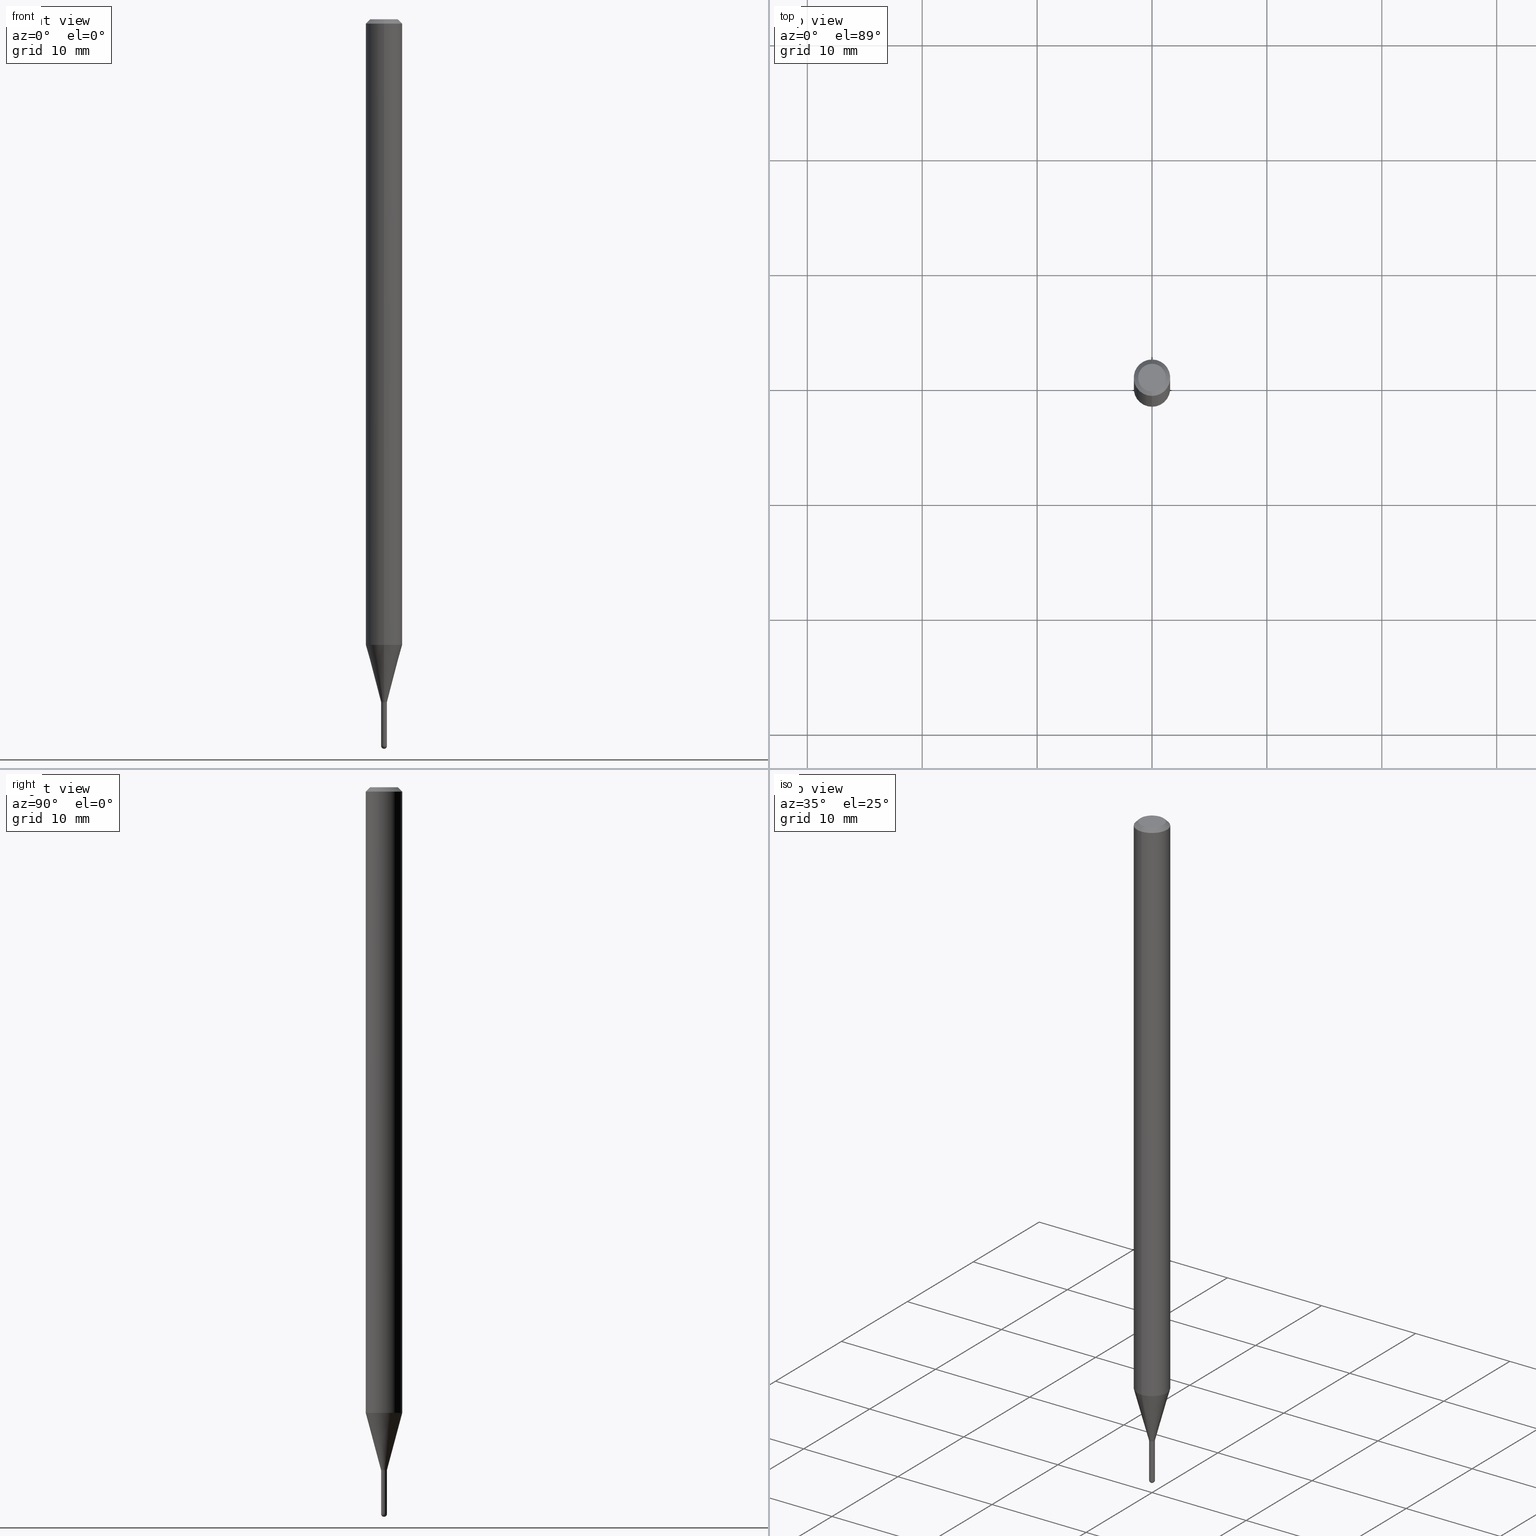
[diagram: canonical four-view strip — front | top / right | iso, engineering-drawing reading convention]
A machine part, canonical four-view strip (front | top / right | iso — engineering-drawing reading convention). The complete STEP part file that produces these views, byte-faithful:
ISO-10303-21;
HEADER;
FILE_DESCRIPTION (( 'STEP AP203' ),
    '1' );
FILE_NAME ('01529.STEP',
    '2024-03-07T19:36:58',
    ( '' ),
    ( '' ),
    'SwSTEP 2.0',
    'SolidWorks 2023',
    '' );
FILE_SCHEMA (( 'CONFIG_CONTROL_DESIGN' ));
ENDSEC;

DATA;
#1 = MANIFOLD_SOLID_BREP ( 'Body-Move/Copy2[1]', #83 ) ;
#2 = AXIS2_PLACEMENT_3D ( 'NONE', #194, #362, #115 ) ;
#3 = AXIS2_PLACEMENT_3D ( 'NONE', #209, #448, #123 ) ;
#4 = EDGE_CURVE ( 'NONE', #17, #47, #428, .T. ) ;
#5 = ORIENTED_EDGE ( 'NONE', *, *, #155, .F. ) ;
#6 = FACE_OUTER_BOUND ( 'NONE', #175, .T. ) ;
#7 = ORIENTED_EDGE ( 'NONE', *, *, #42, .F. ) ;
#8 = CARTESIAN_POINT ( 'NONE',  ( 0.000000000000000000, 0.000000000000000000, 0.000000000000000000 ) ) ;
#9 = ADVANCED_FACE ( 'NONE', ( #52 ), #171, .F. ) ;
#10 = VECTOR ( 'NONE', #511, 39.37007874015748143 ) ;
#11 = SECURITY_CLASSIFICATION ( '', '', #426 ) ;
#12 = DIRECTION ( 'NONE',  ( -2.445532582001462791E-29, 3.491390008244273026E-15, 1.000000000000000000 ) ) ;
#13 = CC_DESIGN_DATE_AND_TIME_ASSIGNMENT ( #384, #357, ( #394 ) ) ;
#14 = DIRECTION ( 'NONE',  ( -2.445532582001462791E-29, 3.491390008244272632E-15, 1.000000000000000000 ) ) ;
#15 = ORIENTED_EDGE ( 'NONE', *, *, #385, .T. ) ;
#16 = CIRCLE ( 'NONE', #54, 0.01000000000000000021 ) ;
#17 = VERTEX_POINT ( 'NONE', #460 ) ;
#18 = PERSON_AND_ORGANIZATION ( #111, #86 ) ;
#19 = DIRECTION ( 'NONE',  ( -2.445468806185136597E-29, 3.491481338843145583E-15, 1.000000000000000000 ) ) ;
#20 = CARTESIAN_POINT ( 'NONE',  ( 6.089217327400989947E-29, -8.693788533719431716E-15, -2.489999999999999769 ) ) ;
#21 = COORDINATED_UNIVERSAL_TIME_OFFSET ( 5, 0, .BEHIND. ) ;
#22 = CYLINDRICAL_SURFACE ( 'NONE', #506, 0.009999999999999923880 ) ;
#23 = ORIENTED_EDGE ( 'NONE', *, *, #422, .F. ) ;
#24 = CALENDAR_DATE ( 2024, 7, 3 ) ;
#25 = ADVANCED_FACE ( 'NONE', ( #303 ), #77, .T. ) ;
#26 = DIRECTION ( 'NONE',  ( -6.982962677686265922E-15, -1.000000000000000000, 0.000000000000000000 ) ) ;
#27 = CARTESIAN_POINT ( 'NONE',  ( 6.113244432318252078E-29, -8.729315670507435968E-15, -2.500000000000000000 ) ) ;
#28 = AXIS2_PLACEMENT_3D ( 'NONE', #8, #125, #163 ) ;
#29 = ORIENTED_EDGE ( 'NONE', *, *, #73, .T. ) ;
#30 = FACE_OUTER_BOUND ( 'NONE', #492, .T. ) ;
#31 = PRODUCT ( '01529', '01529', '', ( #345 ) ) ;
#32 = PERSON_AND_ORGANIZATION_ROLE ( 'design_owner' ) ;
#33 = EDGE_LOOP ( 'NONE', ( #154, #350 ) ) ;
#34 = CC_DESIGN_PERSON_AND_ORGANIZATION_ASSIGNMENT ( #269, #32, ( #31 ) ) ;
#35 = FACE_OUTER_BOUND ( 'NONE', #43, .T. ) ;
#36 = DIRECTION ( 'NONE',  ( 1.839019923739649619E-15, 0.2588190451025318972, 0.9659258262890653146 ) ) ;
#37 = ORIENTED_EDGE ( 'NONE', *, *, #308, .T. ) ;
#38 = DIRECTION ( 'NONE',  ( 6.982962677686265922E-15, 1.000000000000000000, 0.000000000000000000 ) ) ;
#39 = VERTEX_POINT ( 'NONE', #427 ) ;
#40 = CARTESIAN_POINT ( 'NONE',  ( 5.722397006473220130E-29, -8.170066332892960135E-15, -2.340000000000000302 ) ) ;
#41 = VERTEX_POINT ( 'NONE', #259 ) ;
#42 = EDGE_CURVE ( 'NONE', #364, #78, #262, .T. ) ;
#43 = EDGE_LOOP ( 'NONE', ( #112, #212, #344, #451 ) ) ;
#44 = CYLINDRICAL_SURFACE ( 'NONE', #28, 0.06250000000000000000 ) ;
#45 = CIRCLE ( 'NONE', #199, 0.01000000000000000021 ) ;
#46 = ORIENTED_EDGE ( 'NONE', *, *, #406, .F. ) ;
#47 = VERTEX_POINT ( 'NONE', #338 ) ;
#48 = EDGE_CURVE ( 'NONE', #283, #267, #331, .T. ) ;
#49 = VECTOR ( 'NONE', #189, 39.37007874015748854 ) ;
#50 = CC_DESIGN_SECURITY_CLASSIFICATION ( #11, ( #208 ) ) ;
#51 = CC_DESIGN_DATE_AND_TIME_ASSIGNMENT ( #146, #149, ( #11 ) ) ;
#52 = FACE_OUTER_BOUND ( 'NONE', #202, .T. ) ;
#53 = DIRECTION ( 'NONE',  ( 6.982962677686265922E-15, 1.000000000000000000, -3.491390008244273026E-15 ) ) ;
#54 = AXIS2_PLACEMENT_3D ( 'NONE', #140, #19, #307 ) ;
#55 = DIRECTION ( 'NONE',  ( 1.000000000000000000, -6.982962677686265922E-15, 4.883557194083112340E-29 ) ) ;
#56 = COORDINATED_UNIVERSAL_TIME_OFFSET ( 5, 0, .BEHIND. ) ;
#57 = ORIENTED_EDGE ( 'NONE', *, *, #308, .F. ) ;
#58 = EDGE_CURVE ( 'NONE', #107, #231, #286, .T. ) ;
#59 = ORIENTED_EDGE ( 'NONE', *, *, #169, .T. ) ;
#60 = DIRECTION ( 'NONE',  ( -1.807323732225378654E-15, -0.2588190451025251249, 0.9659258262890670910 ) ) ;
#61 = DIRECTION ( 'NONE',  ( -2.445468806185136597E-29, 3.491481338843145583E-15, 1.000000000000000000 ) ) ;
#62 = CALENDAR_DATE ( 2024, 7, 3 ) ;
#63 = VERTEX_POINT ( 'NONE', #490 ) ;
#64 = CARTESIAN_POINT ( 'NONE',  ( 0.000000000000000000, 0.000000000000000000, 0.000000000000000000 ) ) ;
#65 = AXIS2_PLACEMENT_3D ( 'NONE', #150, #280, #26 ) ;
#66 = LOCAL_TIME ( 14, 36, 58.00000000000000000, #227 ) ;
#67 = ORIENTED_EDGE ( 'NONE', *, *, #4, .F. ) ;
#68 = DIRECTION ( 'NONE',  ( -2.445532582001462791E-29, 3.491390008244272632E-15, 1.000000000000000000 ) ) ;
#69 = ORIENTED_EDGE ( 'NONE', *, *, #377, .T. ) ;
#70 = FACE_OUTER_BOUND ( 'NONE', #74, .T. ) ;
#71 = CIRCLE ( 'NONE', #445, 0.04749999999999999362 ) ;
#72 = EDGE_LOOP ( 'NONE', ( #336, #82 ) ) ;
#73 = EDGE_CURVE ( 'NONE', #283, #114, #486, .T. ) ;
#74 = EDGE_LOOP ( 'NONE', ( #23, #408, #380, #147 ) ) ;
#75 = DIRECTION ( 'NONE',  ( -2.445532582001462791E-29, 3.491390008244272632E-15, 1.000000000000000000 ) ) ;
#76 = APPLICATION_CONTEXT ( 'configuration controlled 3d designs of mechanical parts and assemblies' ) ;
#77 = CONICAL_SURFACE ( 'NONE', #196, 0.009999999999999649794, 0.2617993877991574569 ) ;
#78 = VERTEX_POINT ( 'NONE', #302 ) ;
#79 = AXIS2_PLACEMENT_3D ( 'NONE', #320, #153, #366 ) ;
#80 = EDGE_CURVE ( 'NONE', #246, #512, #96, .T. ) ;
#81 = UNCERTAINTY_MEASURE_WITH_UNIT (LENGTH_MEASURE( 1.000000000000000082E-05 ), #446, 'distance_accuracy_value', 'NONE');
#82 = ORIENTED_EDGE ( 'NONE', *, *, #4, .T. ) ;
#83 = CLOSED_SHELL ( 'NONE', ( #293, #375, #349, #254, #370 ) ) ;
#84 = EDGE_LOOP ( 'NONE', ( #181, #440, #217, #484 ) ) ;
#85 = VECTOR ( 'NONE', #222, 39.37007874015748143 ) ;
#86 = ORGANIZATION ( 'UNSPECIFIED', 'UNSPECIFIED', '' ) ;
#87 = SPHERICAL_SURFACE ( 'NONE', #109, 0.01000000000000008521 ) ;
#88 = DIRECTION ( 'NONE',  ( -2.445532582001462791E-29, 3.491390008244272632E-15, 1.000000000000000000 ) ) ;
#89 = ORIENTED_EDGE ( 'NONE', *, *, #135, .T. ) ;
#90 = EDGE_CURVE ( 'NONE', #166, #63, #447, .T. ) ;
#91 = DIRECTION ( 'NONE',  ( -2.445532582001462791E-29, 3.491390008244272632E-15, 1.000000000000000000 ) ) ;
#92 = DIRECTION ( 'NONE',  ( 6.982962677686265133E-15, 1.000000000000000000, 0.000000000000000000 ) ) ;
#93 = APPROVAL_STATUS ( 'not_yet_approved' ) ;
#94 = CARTESIAN_POINT ( 'NONE',  ( -0.01000000000000000021, -8.360873159730185055E-15, -2.340000000000000302 ) ) ;
#95 = CARTESIAN_POINT ( 'NONE',  ( 5.722546241883421547E-29, -8.169852619291597721E-15, -2.339999999999999858 ) ) ;
#96 = CIRCLE ( 'NONE', #137, 0.009499999999999998029 ) ;
#97 = DATE_AND_TIME ( #62, #337 ) ;
#98 = AXIS2_PLACEMENT_3D ( 'NONE', #274, #204, #278 ) ;
#99 = LINE ( 'NONE', #421, #482 ) ;
#100 = APPROVAL_PERSON_ORGANIZATION ( #143, #206, #192 ) ;
#101 = ADVANCED_FACE ( 'NONE', ( #136 ), #419, .F. ) ;
#102 = CARTESIAN_POINT ( 'NONE',  ( 4.440892098501153712E-16, 0.06249999999999995143, -0.01500000000000022669 ) ) ;
#103 = PERSON_AND_ORGANIZATION_ROLE ( 'design_supplier' ) ;
#104 = EDGE_CURVE ( 'NONE', #47, #114, #226, .T. ) ;
#105 = DIRECTION ( 'NONE',  ( -2.445532582001462791E-29, 3.491390008244272632E-15, 1.000000000000000000 ) ) ;
#106 = CARTESIAN_POINT ( 'NONE',  ( 5.722546241883422668E-29, -8.169852619291597721E-15, -2.340000000000000302 ) ) ;
#107 = VERTEX_POINT ( 'NONE', #219 ) ;
#108 = AXIS2_PLACEMENT_3D ( 'NONE', #376, #223, #53 ) ;
#109 = AXIS2_PLACEMENT_3D ( 'NONE', #462, #225, #378 ) ;
#110 = CARTESIAN_POINT ( 'NONE',  ( 7.105427357606474729E-17, 0.009999999999991479246, -2.340000000000000302 ) ) ;
#111 = PERSON ( 'UNSPECIFIED', 'UNSPECIFIED', 'UNSPECIFIED', ('UNSPECIFIED'), ('UNSPECIFIED'), ('UNSPECIFIED') ) ;
#112 = ORIENTED_EDGE ( 'NONE', *, *, #80, .T. ) ;
#113 = PLANE ( 'NONE',  #449 ) ;
#114 = VERTEX_POINT ( 'NONE', #102 ) ;
#115 = DIRECTION ( 'NONE',  ( -6.982962677686265922E-15, -1.000000000000000000, 0.000000000000000000 ) ) ;
#116 = DIRECTION ( 'NONE',  ( -6.982962677686265922E-15, -1.000000000000000000, 0.000000000000000000 ) ) ;
#117 = VERTEX_POINT ( 'NONE', #347 ) ;
#118 = CARTESIAN_POINT ( 'NONE',  ( 0.000000000000000000, 0.000000000000000000, 0.000000000000000000 ) ) ;
#119 = FACE_OUTER_BOUND ( 'NONE', #188, .T. ) ;
#120 = EDGE_CURVE ( 'NONE', #47, #17, #71, .T. ) ;
#121 = AXIS2_PLACEMENT_3D ( 'NONE', #40, #229, #322 ) ;
#122 = EDGE_LOOP ( 'NONE', ( #324, #59, #162, #430 ) ) ;
#123 = DIRECTION ( 'NONE',  ( -6.982962677686265133E-15, -1.000000000000000000, 0.000000000000000000 ) ) ;
#124 = ORIENTED_EDGE ( 'NONE', *, *, #48, .F. ) ;
#125 = DIRECTION ( 'NONE',  ( -2.445532582001462791E-29, 3.491390008244272632E-15, 1.000000000000000000 ) ) ;
#126 = CARTESIAN_POINT ( 'NONE',  ( 5.722546241883421547E-29, -8.169852619291597721E-15, -2.339999999999999858 ) ) ;
#127 = AXIS2_PLACEMENT_3D ( 'NONE', #363, #468, #311 ) ;
#128 = DIRECTION ( 'NONE',  ( -6.982962677686266711E-15, -1.000000000000000000, 3.491390008244273026E-15 ) ) ;
#129 = EDGE_CURVE ( 'NONE', #250, #231, #388, .T. ) ;
#130 = CONICAL_SURFACE ( 'NONE', #289, 0.06250000000000000000, 0.7853981633974483900 ) ;
#131 = DIRECTION ( 'NONE',  ( 1.000000000000000000, -6.982962677686235945E-15, 0.000000000000000000 ) ) ;
#132 = CARTESIAN_POINT ( 'NONE',  ( 4.440892098500625669E-16, 0.06250000000000000000, -2.182118755152670395E-16 ) ) ;
#133 = CARTESIAN_POINT ( 'NONE',  ( 2.167880946664454471E-46, -3.094997765293680207E-32, -8.864657795277567332E-18 ) ) ;
#134 = APPROVAL_STATUS ( 'not_yet_approved' ) ;
#135 = EDGE_CURVE ( 'NONE', #246, #231, #191, .T. ) ;
#136 = FACE_OUTER_BOUND ( 'NONE', #72, .T. ) ;
#137 = AXIS2_PLACEMENT_3D ( 'NONE', #95, #257, #416 ) ;
#138 = APPLICATION_PROTOCOL_DEFINITION ( 'international standard', 'config_control_design', 1994, #282 ) ;
#139 = VECTOR ( 'NONE', #236, 39.37007874015748143 ) ;
#140 = CARTESIAN_POINT ( 'NONE',  ( 5.722397006473220130E-29, -8.170066332892960135E-15, -2.340000000000000302 ) ) ;
#141 = DIRECTION ( 'NONE',  ( -6.982962677686265133E-15, -1.000000000000000000, 0.000000000000000000 ) ) ;
#142 = ORIENTED_EDGE ( 'NONE', *, *, #58, .F. ) ;
#143 = PERSON_AND_ORGANIZATION ( #111, #86 ) ;
#144 = FACE_OUTER_BOUND ( 'NONE', #33, .T. ) ;
#145 = CARTESIAN_POINT ( 'NONE',  ( -6.633814543796229745E-17, -0.009500000000008168577, -2.339999999999999858 ) ) ;
#146 = DATE_AND_TIME ( #503, #403 ) ;
#147 = ORIENTED_EDGE ( 'NONE', *, *, #201, .T. ) ;
#148 = CLOSED_SHELL ( 'NONE', ( #9, #327, #190, #477, #341, #25, #158, #245, #101, #297, #500, #415 ) ) ;
#149 = DATE_TIME_ROLE ( 'classification_date' ) ;
#150 = CARTESIAN_POINT ( 'NONE',  ( 5.722546241883422668E-29, -8.169852619291597721E-15, -2.340000000000000302 ) ) ;
#151 = EDGE_LOOP ( 'NONE', ( #332, #407, #369, #124 ) ) ;
#152 = CARTESIAN_POINT ( 'NONE',  ( -4.364351673553393088E-16, -0.06250000000000749401, -2.144067332602638931 ) ) ;
#153 = DIRECTION ( 'NONE',  ( -2.445532582001462791E-29, 3.491390008244272632E-15, 1.000000000000000000 ) ) ;
#154 = ORIENTED_EDGE ( 'NONE', *, *, #80, .F. ) ;
#155 = EDGE_CURVE ( 'NONE', #78, #63, #45, .T. ) ;
#156 = DIRECTION ( 'NONE',  ( 2.438088387897960049E-29, -3.491481338843145188E-15, -1.000000000000000000 ) ) ;
#157 = CARTESIAN_POINT ( 'NONE',  ( -6.633814543796229745E-17, -0.009500000000008168577, -2.339999999999999858 ) ) ;
#158 = ADVANCED_FACE ( 'NONE', ( #472 ), #200, .T. ) ;
#159 = VECTOR ( 'NONE', #36, 39.37007874015748143 ) ;
#160 = ORIENTED_EDGE ( 'NONE', *, *, #167, .T. ) ;
#161 = DIRECTION ( 'NONE',  ( -6.982962677686265922E-15, -1.000000000000000000, 0.000000000000000000 ) ) ;
#162 = ORIENTED_EDGE ( 'NONE', *, *, #435, .F. ) ;
#163 = DIRECTION ( 'NONE',  ( -6.982962677686265922E-15, -1.000000000000000000, 3.491390008244272632E-15 ) ) ;
#164 = EDGE_LOOP ( 'NONE', ( #328, #232, #251, #242, #474 ) ) ;
#165 = CC_DESIGN_APPROVAL ( #489, ( #11 ) ) ;
#166 = VERTEX_POINT ( 'NONE', #27 ) ;
#167 = EDGE_CURVE ( 'NONE', #512, #246, #353, .T. ) ;
#168 = DIRECTION ( 'NONE',  ( -2.445468806185136597E-29, 3.491481338843145583E-15, 1.000000000000000000 ) ) ;
#169 = EDGE_CURVE ( 'NONE', #117, #283, #481, .T. ) ;
#170 = CARTESIAN_POINT ( 'NONE',  ( -4.364351673553916201E-16, -0.06250000000000000000, 2.182118755152670395E-16 ) ) ;
#171 = CYLINDRICAL_SURFACE ( 'NONE', #470, 0.009999999999999923880 ) ;
#172 = AXIS2_PLACEMENT_3D ( 'NONE', #118, #368, #510 ) ;
#173 = CONICAL_SURFACE ( 'NONE', #488, 0.009499999999999998029, 0.7853981633980202659 ) ;
#174 = APPROVAL ( #493, 'UNSPECIFIED' ) ;
#175 = EDGE_LOOP ( 'NONE', ( #476, #160, #89, #142 ) ) ;
#176 = EDGE_CURVE ( 'NONE', #41, #444, #230, .T. ) ;
#177 =( NAMED_UNIT ( * ) SI_UNIT ( $, .STERADIAN. ) SOLID_ANGLE_UNIT ( ) );
#178 = CARTESIAN_POINT ( 'NONE',  ( 5.243386519884720525E-29, -7.485775262051803543E-15, -2.144067332602638931 ) ) ;
#179 = APPROVAL_DATE_TIME ( #389, #489 ) ;
#180 = ORIENTED_EDGE ( 'NONE', *, *, #452, .T. ) ;
#181 = ORIENTED_EDGE ( 'NONE', *, *, #377, .F. ) ;
#182 = PERSON_AND_ORGANIZATION_ROLE ( 'creator' ) ;
#183 = AXIS2_PLACEMENT_3D ( 'NONE', #290, #61, #437 ) ;
#184 = FACE_OUTER_BOUND ( 'NONE', #164, .T. ) ;
#185 = CC_DESIGN_APPROVAL ( #206, ( #208 ) ) ;
#186 = DIRECTION ( 'NONE',  ( -6.982962677686265922E-15, -1.000000000000000000, 3.483106191921935554E-15 ) ) ;
#187 = CARTESIAN_POINT ( 'NONE',  ( 0.000000000000000000, 0.000000000000000000, 0.000000000000000000 ) ) ;
#188 = EDGE_LOOP ( 'NONE', ( #67, #321, #438, #273 ) ) ;
#189 = DIRECTION ( 'NONE',  ( 5.024295867790934632E-15, 0.7071067811869542474, 0.7071067811861405650 ) ) ;
#190 = ADVANCED_FACE ( 'NONE', ( #119 ), #296, .T. ) ;
#191 = LINE ( 'NONE', #157, #213 ) ;
#192 = APPROVAL_ROLE ( '' ) ;
#193 = EDGE_LOOP ( 'NONE', ( #412, #361, #413, #508, #374 ) ) ;
#194 = CARTESIAN_POINT ( 'NONE',  ( 5.722546241883421547E-29, -8.169852619291597721E-15, -2.339999999999999858 ) ) ;
#195 = DIRECTION ( 'NONE',  ( -2.445468806185136597E-29, 3.491481338843145583E-15, 1.000000000000000000 ) ) ;
#196 = AXIS2_PLACEMENT_3D ( 'NONE', #106, #271, #457 ) ;
#197 = ORIENTED_EDGE ( 'NONE', *, *, #48, .T. ) ;
#198 = CARTESIAN_POINT ( 'NONE',  ( -4.364351673553912750E-16, -0.06250000000000005551, -0.01499999999999979128 ) ) ;
#199 = AXIS2_PLACEMENT_3D ( 'NONE', #281, #195, #397 ) ;
#200 = CYLINDRICAL_SURFACE ( 'NONE', #410, 0.06250000000000000000 ) ;
#201 = EDGE_CURVE ( 'NONE', #114, #358, #487, .T. ) ;
#202 = EDGE_LOOP ( 'NONE', ( #210, #69, #498, #417 ) ) ;
#203 = DIRECTION ( 'NONE',  ( -6.982962677686265922E-15, -1.000000000000000000, 3.491390008244273026E-15 ) ) ;
#204 = DIRECTION ( 'NONE',  ( 2.445532582001462791E-29, -3.491390008244272632E-15, -1.000000000000000000 ) ) ;
#205 = AXIS2_PLACEMENT_3D ( 'NONE', #425, #340, #141 ) ;
#206 = APPROVAL ( #134, 'UNSPECIFIED' ) ;
#207 = CIRCLE ( 'NONE', #121, 0.01000000000000000021 ) ;
#208 = PRODUCT_DEFINITION_FORMATION_WITH_SPECIFIED_SOURCE ( 'ANY', '', #31, .NOT_KNOWN. ) ;
#209 = CARTESIAN_POINT ( 'NONE',  ( 5.721323475592422370E-29, -8.168106924287477831E-15, -2.339500000000000135 ) ) ;
#210 = ORIENTED_EDGE ( 'NONE', *, *, #253, .F. ) ;
#211 = FACE_OUTER_BOUND ( 'NONE', #504, .T. ) ;
#212 = ORIENTED_EDGE ( 'NONE', *, *, #272, .T. ) ;
#213 = VECTOR ( 'NONE', #241, 39.37007874015748854 ) ;
#214 = EDGE_CURVE ( 'NONE', #63, #41, #220, .T. ) ;
#215 = DIRECTION ( 'NONE',  ( -2.445532582001462791E-29, 3.491390008244272632E-15, 1.000000000000000000 ) ) ;
#216 = LINE ( 'NONE', #170, #255 ) ;
#217 = ORIENTED_EDGE ( 'NONE', *, *, #129, .T. ) ;
#218 = CARTESIAN_POINT ( 'NONE',  ( -4.287811248607203282E-16, -0.06250000000000005551, -0.01499999999999979128 ) ) ;
#219 = CARTESIAN_POINT ( 'NONE',  ( 7.105427357606838345E-17, 0.009999999999991994459, -2.339500000000000135 ) ) ;
#220 = CIRCLE ( 'NONE', #183, 0.01000000000000000021 ) ;
#221 = APPROVAL_DATE_TIME ( #97, #174 ) ;
#222 = DIRECTION ( 'NONE',  ( -2.445468806185136877E-29, 3.491481338843145188E-15, 1.000000000000000000 ) ) ;
#223 = DIRECTION ( 'NONE',  ( 2.445532582001461950E-29, -3.491390008244273026E-15, -1.000000000000000000 ) ) ;
#224 = CALENDAR_DATE ( 2024, 7, 3 ) ;
#225 = DIRECTION ( 'NONE',  ( -1.000000000000000000, 6.982962677686265922E-15, -4.883557194083113462E-29 ) ) ;
#226 = LINE ( 'NONE', #494, #497 ) ;
#227 = COORDINATED_UNIVERSAL_TIME_OFFSET ( 5, 0, .BEHIND. ) ;
#228 = AXIS2_PLACEMENT_3D ( 'NONE', #133, #14, #299 ) ;
#229 = DIRECTION ( 'NONE',  ( -2.445468806185136597E-29, 3.491481338843145583E-15, 1.000000000000000000 ) ) ;
#230 = LINE ( 'NONE', #323, #139 ) ;
#231 = VERTEX_POINT ( 'NONE', #479 ) ;
#232 = ORIENTED_EDGE ( 'NONE', *, *, #406, .T. ) ;
#233 = EDGE_CURVE ( 'NONE', #358, #114, #392, .T. ) ;
#234 = VECTOR ( 'NONE', #60, 39.37007874015748854 ) ;
#235 = APPROVAL_PERSON_ORGANIZATION ( #18, #174, #360 ) ;
#236 = DIRECTION ( 'NONE',  ( -2.445468806185136877E-29, 3.491481338843145188E-15, 1.000000000000000000 ) ) ;
#237 = DIRECTION ( 'NONE',  ( 1.000000000000000000, 0.000000000000000000, 0.000000000000000000 ) ) ;
#238 = EDGE_LOOP ( 'NONE', ( #329, #180 ) ) ;
#239 = ADVANCED_BREP_SHAPE_REPRESENTATION ( '01529', ( #1, #351, #326 ), #256 ) ;
#240 = PLANE ( 'NONE',  #414 ) ;
#241 = DIRECTION ( 'NONE',  ( -4.937700262167370586E-15, -0.7071067811869493624, 0.7071067811861454500 ) ) ;
#242 = ORIENTED_EDGE ( 'NONE', *, *, #443, .T. ) ;
#243 = DIRECTION ( 'NONE',  ( -1.000000000000000000, 6.982962677686265922E-15, -4.876176775795935793E-29 ) ) ;
#244 = SPHERICAL_SURFACE ( 'NONE', #393, 0.01000000000000008521 ) ;
#245 = ADVANCED_FACE ( 'NONE', ( #70 ), #130, .T. ) ;
#246 = VERTEX_POINT ( 'NONE', #145 ) ;
#247 = LINE ( 'NONE', #288, #234 ) ;
#248 = AXIS2_PLACEMENT_3D ( 'NONE', #263, #343, #491 ) ;
#249 = CARTESIAN_POINT ( 'NONE',  ( 6.088362161111811119E-29, -8.695013180518578499E-15, -2.489999999999999769 ) ) ;
#250 = VERTEX_POINT ( 'NONE', #442 ) ;
#251 = ORIENTED_EDGE ( 'NONE', *, *, #42, .T. ) ;
#252 = CIRCLE ( 'NONE', #382, 0.01000000000000000021 ) ;
#253 = EDGE_CURVE ( 'NONE', #117, #250, #402, .T. ) ;
#254 = ADVANCED_FACE ( 'NONE', ( #30 ), #244, .T. ) ;
#255 = VECTOR ( 'NONE', #266, 39.37007874015748143 ) ;
#256 =( GEOMETRIC_REPRESENTATION_CONTEXT ( 3 ) GLOBAL_UNCERTAINTY_ASSIGNED_CONTEXT ( ( #81 ) ) GLOBAL_UNIT_ASSIGNED_CONTEXT ( ( #446, #318, #177 ) ) REPRESENTATION_CONTEXT ( 'NONE', 'WORKASPACE' ) );
#257 = DIRECTION ( 'NONE',  ( -2.445532582001462791E-29, 3.491390008244272632E-15, 1.000000000000000000 ) ) ;
#258 = DIRECTION ( 'NONE',  ( -6.982962677686265922E-15, -1.000000000000000000, 3.491390008244272237E-15 ) ) ;
#259 = CARTESIAN_POINT ( 'NONE',  ( -0.01000000000000000021, -8.360873159730185055E-15, -2.489999999999999769 ) ) ;
#260 = AXIS2_PLACEMENT_3D ( 'NONE', #20, #168, #423 ) ;
#261 = PERSON_AND_ORGANIZATION ( #111, #86 ) ;
#262 = CIRCLE ( 'NONE', #260, 0.01000000000000000021 ) ;
#263 = CARTESIAN_POINT ( 'NONE',  ( 5.243386519884720525E-29, -7.485775262051803543E-15, -2.144067332602638931 ) ) ;
#264 = CARTESIAN_POINT ( 'NONE',  ( 6.088362161111811119E-29, -8.695013180518578499E-15, -2.489999999999999769 ) ) ;
#265 = CIRCLE ( 'NONE', #248, 0.06250000000000000000 ) ;
#266 = DIRECTION ( 'NONE',  ( -2.445532582001462791E-29, 3.491390008244273026E-15, 1.000000000000000000 ) ) ;
#267 = VERTEX_POINT ( 'NONE', #152 ) ;
#268 = CARTESIAN_POINT ( 'NONE',  ( 2.167880946664454471E-46, -3.094997765293680207E-32, -8.864657795277567332E-18 ) ) ;
#269 = PERSON_AND_ORGANIZATION ( #111, #86 ) ;
#270 = LINE ( 'NONE', #459, #85 ) ;
#271 = DIRECTION ( 'NONE',  ( -2.445532582001462791E-29, 3.491390008244272632E-15, 1.000000000000000000 ) ) ;
#272 = EDGE_CURVE ( 'NONE', #512, #107, #431, .T. ) ;
#273 = ORIENTED_EDGE ( 'NONE', *, *, #104, .F. ) ;
#274 = CARTESIAN_POINT ( 'NONE',  ( 3.668298873002196219E-31, -5.237085012366411782E-17, -0.01500000000000000812 ) ) ;
#275 = DIRECTION ( 'NONE',  ( 0.000000000000000000, 0.000000000000000000, 1.000000000000000000 ) ) ;
#276 = CONICAL_SURFACE ( 'NONE', #65, 0.009999999999999649794, 0.2617993877991574569 ) ;
#277 = DIRECTION ( 'NONE',  ( -1.000000000000000000, 7.105427357601001070E-15, -4.926315508542082329E-29 ) ) ;
#278 = DIRECTION ( 'NONE',  ( 6.982962677686265922E-15, 1.000000000000000000, -3.483106191921935554E-15 ) ) ;
#279 = CC_DESIGN_PERSON_AND_ORGANIZATION_ASSIGNMENT ( #312, #386, ( #11 ) ) ;
#280 = DIRECTION ( 'NONE',  ( -2.445532582001462791E-29, 3.491390008244272632E-15, 1.000000000000000000 ) ) ;
#281 = CARTESIAN_POINT ( 'NONE',  ( 6.089217327400989947E-29, -8.693788533719431716E-15, -2.489999999999999769 ) ) ;
#282 = APPLICATION_CONTEXT ( 'configuration controlled 3d designs of mechanical parts and assemblies' ) ;
#283 = VERTEX_POINT ( 'NONE', #436 ) ;
#284 = CYLINDRICAL_SURFACE ( 'NONE', #172, 0.01000000000000000021 ) ;
#285 = CARTESIAN_POINT ( 'NONE',  ( 3.668298873002196219E-31, -5.237085012366411782E-17, -0.01500000000000000812 ) ) ;
#286 = CIRCLE ( 'NONE', #205, 0.01000000000000019623 ) ;
#287 = VECTOR ( 'NONE', #12, 39.37007874015748143 ) ;
#288 = CARTESIAN_POINT ( 'NONE',  ( -6.982962677680298731E-17, -0.01000000000000782034, -2.340000000000000302 ) ) ;
#289 = AXIS2_PLACEMENT_3D ( 'NONE', #405, #391, #356 ) ;
#290 = CARTESIAN_POINT ( 'NONE',  ( 6.089217327400989947E-29, -8.693788533719431716E-15, -2.489999999999999769 ) ) ;
#291 = EDGE_LOOP ( 'NONE', ( #319, #197, #15, #309 ) ) ;
#292 = CARTESIAN_POINT ( 'NONE',  ( 6.927791673666766302E-17, 0.009499999999991829217, -2.339999999999999858 ) ) ;
#293 = ADVANCED_FACE ( 'NONE', ( #313 ), #478, .T. ) ;
#294 = EDGE_CURVE ( 'NONE', #250, #267, #247, .T. ) ;
#295 = ORIENTED_EDGE ( 'NONE', *, *, #385, .F. ) ;
#296 = CONICAL_SURFACE ( 'NONE', #98, 0.06250000000000000000, 0.7853981633974483900 ) ;
#297 = ADVANCED_FACE ( 'NONE', ( #144 ), #240, .F. ) ;
#298 = PRODUCT_RELATED_PRODUCT_CATEGORY ( 'detail', '', ( #31 ) ) ;
#299 = DIRECTION ( 'NONE',  ( -6.982962677686266711E-15, -1.000000000000000000, 3.491390008244273026E-15 ) ) ;
#300 = LOCAL_TIME ( 14, 36, 58.00000000000000000, #56 ) ;
#301 = FACE_OUTER_BOUND ( 'NONE', #84, .T. ) ;
#302 = CARTESIAN_POINT ( 'NONE',  ( 0.01000000000000000021, -8.501757060083058435E-15, -2.489999999999999769 ) ) ;
#303 = FACE_OUTER_BOUND ( 'NONE', #151, .T. ) ;
#304 = APPROVAL_DATE_TIME ( #464, #206 ) ;
#305 = ORIENTED_EDGE ( 'NONE', *, *, #90, .T. ) ;
#306 = AXIS2_PLACEMENT_3D ( 'NONE', #465, #105, #409 ) ;
#307 = DIRECTION ( 'NONE',  ( 1.000000000000000000, -6.982962677686235945E-15, 0.000000000000000000 ) ) ;
#308 = EDGE_CURVE ( 'NONE', #166, #364, #485, .T. ) ;
#309 = ORIENTED_EDGE ( 'NONE', *, *, #201, .F. ) ;
#310 = COORDINATED_UNIVERSAL_TIME_OFFSET ( 5, 0, .BEHIND. ) ;
#311 = DIRECTION ( 'NONE',  ( -6.982962677686265922E-15, -1.000000000000000000, 0.000000000000000000 ) ) ;
#312 = PERSON_AND_ORGANIZATION ( #111, #86 ) ;
#313 = FACE_OUTER_BOUND ( 'NONE', #193, .T. ) ;
#314 = CARTESIAN_POINT ( 'NONE',  ( -6.982962677686212723E-17, -0.009999999999999923880, 3.491390008244245761E-17 ) ) ;
#315 = PERSON_AND_ORGANIZATION ( #111, #86 ) ;
#316 = CONICAL_SURFACE ( 'NONE', #2, 0.009499999999999998029, 0.7853981633980202659 ) ;
#317 = DIRECTION ( 'NONE',  ( 1.000000000000000000, -6.982962677686265922E-15, 4.876176775795935793E-29 ) ) ;
#318 =( NAMED_UNIT ( * ) PLANE_ANGLE_UNIT ( ) SI_UNIT ( $, .RADIAN. ) );
#319 = ORIENTED_EDGE ( 'NONE', *, *, #73, .F. ) ;
#320 = CARTESIAN_POINT ( 'NONE',  ( 3.668298873002196219E-31, -5.237085012366411782E-17, -0.01500000000000000812 ) ) ;
#321 = ORIENTED_EDGE ( 'NONE', *, *, #422, .T. ) ;
#322 = DIRECTION ( 'NONE',  ( 1.000000000000000000, -6.982962677686235945E-15, 0.000000000000000000 ) ) ;
#323 = CARTESIAN_POINT ( 'NONE',  ( -0.01000000000000000021, 7.105427357601002007E-17, -4.918935090254906272E-31 ) ) ;
#324 = ORIENTED_EDGE ( 'NONE', *, *, #469, .T. ) ;
#325 = AXIS2_PLACEMENT_3D ( 'NONE', #64, #390, #317 ) ;
#326 = AXIS2_PLACEMENT_3D ( 'NONE', #187, #275, #237 ) ;
#327 = ADVANCED_FACE ( 'NONE', ( #35 ), #316, .T. ) ;
#328 = ORIENTED_EDGE ( 'NONE', *, *, #176, .F. ) ;
#329 = ORIENTED_EDGE ( 'NONE', *, *, #334, .T. ) ;
#330 = LENGTH_MEASURE_WITH_UNIT ( LENGTH_MEASURE( 0.02539999999999999897 ), #333 );
#331 = CIRCLE ( 'NONE', #371, 0.06250000000000000000 ) ;
#332 = ORIENTED_EDGE ( 'NONE', *, *, #169, .F. ) ;
#333 =( LENGTH_UNIT ( ) NAMED_UNIT ( * ) SI_UNIT ( $, .METRE. ) );
#334 = EDGE_CURVE ( 'NONE', #39, #444, #207, .T. ) ;
#335 = VECTOR ( 'NONE', #495, 39.37007874015748143 ) ;
#336 = ORIENTED_EDGE ( 'NONE', *, *, #120, .T. ) ;
#337 = LOCAL_TIME ( 14, 36, 58.00000000000000000, #429 ) ;
#338 = CARTESIAN_POINT ( 'NONE',  ( 3.840629472727447874E-16, 0.04749999999999999362, -1.747056831868805136E-16 ) ) ;
#339 = DIRECTION ( 'NONE',  ( -2.445468806185136597E-29, 3.491481338843145583E-15, 1.000000000000000000 ) ) ;
#340 = DIRECTION ( 'NONE',  ( -2.445532582001462791E-29, 3.491390008244272632E-15, 1.000000000000000000 ) ) ;
#341 = ADVANCED_FACE ( 'NONE', ( #505 ), #276, .T. ) ;
#342 = CIRCLE ( 'NONE', #3, 0.01000000000000019623 ) ;
#343 = DIRECTION ( 'NONE',  ( -2.445532582001462791E-29, 3.491390008244272632E-15, 1.000000000000000000 ) ) ;
#344 = ORIENTED_EDGE ( 'NONE', *, *, #507, .F. ) ;
#345 = MECHANICAL_CONTEXT ( 'NONE', #282, 'mechanical' ) ;
#346 = DIRECTION ( 'NONE',  ( -2.445532582001462791E-29, 3.491390008244273026E-15, 1.000000000000000000 ) ) ;
#347 = CARTESIAN_POINT ( 'NONE',  ( 2.575717417130899915E-16, 0.009999999999991479246, -2.340000000000000302 ) ) ;
#348 = APPROVAL_ROLE ( '' ) ;
#349 = ADVANCED_FACE ( 'NONE', ( #475 ), #113, .F. ) ;
#350 = ORIENTED_EDGE ( 'NONE', *, *, #167, .F. ) ;
#351 = MANIFOLD_SOLID_BREP ( 'Body-Move/Copy2[2]', #148 ) ;
#352 = DESIGN_CONTEXT ( 'detailed design', #76, 'design' ) ;
#353 = CIRCLE ( 'NONE', #473, 0.009499999999999998029 ) ;
#354 = SHAPE_DEFINITION_REPRESENTATION ( #398, #239 ) ;
#355 = FACE_OUTER_BOUND ( 'NONE', #450, .T. ) ;
#356 = DIRECTION ( 'NONE',  ( 6.982962677686265922E-15, 1.000000000000000000, -3.483106191921935554E-15 ) ) ;
#357 = DATE_TIME_ROLE ( 'creation_date' ) ;
#358 = VERTEX_POINT ( 'NONE', #198 ) ;
#359 = DIRECTION ( 'NONE',  ( -6.982962677686265922E-15, -1.000000000000000000, 3.491390008244272632E-15 ) ) ;
#360 = APPROVAL_ROLE ( '' ) ;
#361 = ORIENTED_EDGE ( 'NONE', *, *, #176, .T. ) ;
#362 = DIRECTION ( 'NONE',  ( -2.445532582001462791E-29, 3.491390008244272632E-15, 1.000000000000000000 ) ) ;
#363 = CARTESIAN_POINT ( 'NONE',  ( 5.722546241883422668E-29, -8.169852619291597721E-15, -2.340000000000000302 ) ) ;
#364 = VERTEX_POINT ( 'NONE', #480 ) ;
#365 = CIRCLE ( 'NONE', #306, 0.009999999999999649794 ) ;
#366 = DIRECTION ( 'NONE',  ( -6.982962677686265922E-15, -1.000000000000000000, 3.483106191921935554E-15 ) ) ;
#367 = ORIENTED_EDGE ( 'NONE', *, *, #214, .F. ) ;
#368 = DIRECTION ( 'NONE',  ( -2.445468806185136597E-29, 3.491481338843145583E-15, 1.000000000000000000 ) ) ;
#369 = ORIENTED_EDGE ( 'NONE', *, *, #294, .T. ) ;
#370 = ADVANCED_FACE ( 'NONE', ( #184 ), #284, .T. ) ;
#371 = AXIS2_PLACEMENT_3D ( 'NONE', #178, #215, #463 ) ;
#372 = DIMENSIONAL_EXPONENTS ( 1.000000000000000000, 0.000000000000000000, 0.000000000000000000, 0.000000000000000000, 0.000000000000000000, 0.000000000000000000, 0.000000000000000000 ) ;
#373 = CC_DESIGN_PERSON_AND_ORGANIZATION_ASSIGNMENT ( #461, #103, ( #208 ) ) ;
#374 = ORIENTED_EDGE ( 'NONE', *, *, #155, .T. ) ;
#375 = ADVANCED_FACE ( 'NONE', ( #355 ), #87, .T. ) ;
#376 = CARTESIAN_POINT ( 'NONE',  ( 3.316907271900976096E-16, 0.04749999999999999362, -1.702733542892417146E-16 ) ) ;
#377 = EDGE_CURVE ( 'NONE', #117, #107, #99, .T. ) ;
#378 = DIRECTION ( 'NONE',  ( 6.982962677686265922E-15, 1.000000000000000000, 0.000000000000000000 ) ) ;
#379 = AXIS2_PLACEMENT_3D ( 'NONE', #264, #55, #92 ) ;
#380 = ORIENTED_EDGE ( 'NONE', *, *, #104, .T. ) ;
#381 = DIRECTION ( 'NONE',  ( -2.445532582001462791E-29, 3.491390008244272632E-15, 1.000000000000000000 ) ) ;
#382 = AXIS2_PLACEMENT_3D ( 'NONE', #387, #339, #131 ) ;
#383 = LOCAL_TIME ( 14, 36, 58.00000000000000000, #310 ) ;
#384 = DATE_AND_TIME ( #224, #300 ) ;
#385 = EDGE_CURVE ( 'NONE', #267, #358, #216, .T. ) ;
#386 = PERSON_AND_ORGANIZATION_ROLE ( 'classification_officer' ) ;
#387 = CARTESIAN_POINT ( 'NONE',  ( 6.089217327400989947E-29, -8.693788533719431716E-15, -2.489999999999999769 ) ) ;
#388 = LINE ( 'NONE', #314, #10 ) ;
#389 = DATE_AND_TIME ( #467, #383 ) ;
#390 = DIRECTION ( 'NONE',  ( -2.445468806185136597E-29, 3.491481338843145583E-15, 1.000000000000000000 ) ) ;
#391 = DIRECTION ( 'NONE',  ( 2.445532582001462791E-29, -3.491390008244272632E-15, -1.000000000000000000 ) ) ;
#392 = CIRCLE ( 'NONE', #453, 0.06250000000000000000 ) ;
#393 = AXIS2_PLACEMENT_3D ( 'NONE', #249, #400, #38 ) ;
#394 = PRODUCT_DEFINITION ( 'UNKNOWN', '', #208, #352 ) ;
#395 = APPROVAL_PERSON_ORGANIZATION ( #315, #489, #348 ) ;
#396 = CARTESIAN_POINT ( 'NONE',  ( 5.722546241883422668E-29, -8.169852619291597721E-15, -2.340000000000000302 ) ) ;
#397 = DIRECTION ( 'NONE',  ( 1.000000000000000000, -6.982962677686235945E-15, 0.000000000000000000 ) ) ;
#398 = PRODUCT_DEFINITION_SHAPE ( 'NONE', 'NONE',  #394 ) ;
#399 = CARTESIAN_POINT ( 'NONE',  ( 5.722546241883421547E-29, -8.169852619291597721E-15, -2.339999999999999858 ) ) ;
#400 = DIRECTION ( 'NONE',  ( -1.000000000000000000, 6.982962677686265922E-15, -4.883557194083113462E-29 ) ) ;
#401 = ORIENTED_EDGE ( 'NONE', *, *, #90, .F. ) ;
#402 = CIRCLE ( 'NONE', #127, 0.009999999999999649794 ) ;
#403 = LOCAL_TIME ( 14, 36, 58.00000000000000000, #21 ) ;
#404 = DIRECTION ( 'NONE',  ( -7.105427357601000281E-15, -1.000000000000000000, 0.000000000000000000 ) ) ;
#405 = CARTESIAN_POINT ( 'NONE',  ( 3.668298873002196219E-31, -5.237085012366411782E-17, -0.01500000000000000812 ) ) ;
#406 = EDGE_CURVE ( 'NONE', #41, #364, #252, .T. ) ;
#407 = ORIENTED_EDGE ( 'NONE', *, *, #253, .T. ) ;
#408 = ORIENTED_EDGE ( 'NONE', *, *, #120, .F. ) ;
#409 = DIRECTION ( 'NONE',  ( -6.982962677686265922E-15, -1.000000000000000000, 0.000000000000000000 ) ) ;
#410 = AXIS2_PLACEMENT_3D ( 'NONE', #432, #509, #359 ) ;
#411 = CC_DESIGN_APPROVAL ( #174, ( #394 ) ) ;
#412 = ORIENTED_EDGE ( 'NONE', *, *, #214, .T. ) ;
#413 = ORIENTED_EDGE ( 'NONE', *, *, #334, .F. ) ;
#414 = AXIS2_PLACEMENT_3D ( 'NONE', #396, #441, #203 ) ;
#415 = ADVANCED_FACE ( 'NONE', ( #301 ), #22, .F. ) ;
#416 = DIRECTION ( 'NONE',  ( -6.982962677686265922E-15, -1.000000000000000000, 0.000000000000000000 ) ) ;
#417 = ORIENTED_EDGE ( 'NONE', *, *, #129, .F. ) ;
#418 = LINE ( 'NONE', #218, #335 ) ;
#419 = PLANE ( 'NONE',  #108 ) ;
#420 = APPLICATION_PROTOCOL_DEFINITION ( 'international standard', 'config_control_design', 1994, #76 ) ;
#421 = CARTESIAN_POINT ( 'NONE',  ( 7.105427357600945307E-17, 0.009999999999999923880, -3.491390008244245761E-17 ) ) ;
#422 = EDGE_CURVE ( 'NONE', #17, #358, #418, .T. ) ;
#423 = DIRECTION ( 'NONE',  ( 1.000000000000000000, -6.982962677686235945E-15, 0.000000000000000000 ) ) ;
#424 = PERSON_AND_ORGANIZATION ( #111, #86 ) ;
#425 = CARTESIAN_POINT ( 'NONE',  ( 5.721323475592422370E-29, -8.168106924287477831E-15, -2.339500000000000135 ) ) ;
#426 = SECURITY_CLASSIFICATION_LEVEL ( 'unclassified' ) ;
#427 = CARTESIAN_POINT ( 'NONE',  ( 0.01000000000000000021, -8.239895959669823433E-15, -2.340000000000000302 ) ) ;
#428 = CIRCLE ( 'NONE', #228, 0.04749999999999999362 ) ;
#429 = COORDINATED_UNIVERSAL_TIME_OFFSET ( 5, 0, .BEHIND. ) ;
#430 = ORIENTED_EDGE ( 'NONE', *, *, #294, .F. ) ;
#431 = LINE ( 'NONE', #499, #49 ) ;
#432 = CARTESIAN_POINT ( 'NONE',  ( 0.000000000000000000, 0.000000000000000000, 0.000000000000000000 ) ) ;
#433 = AXIS2_PLACEMENT_3D ( 'NONE', #471, #277, #404 ) ;
#434 = ORIENTED_EDGE ( 'NONE', *, *, #435, .T. ) ;
#435 = EDGE_CURVE ( 'NONE', #267, #283, #265, .T. ) ;
#436 = CARTESIAN_POINT ( 'NONE',  ( 4.440892098501148782E-16, 0.06249999999999250599, -2.144067332602639375 ) ) ;
#437 = DIRECTION ( 'NONE',  ( 1.000000000000000000, -6.982962677686235945E-15, 0.000000000000000000 ) ) ;
#438 = ORIENTED_EDGE ( 'NONE', *, *, #233, .T. ) ;
#439 = CARTESIAN_POINT ( 'NONE',  ( 6.982962677691987431E-17, 0.009999999999991829661, -2.340000000000000302 ) ) ;
#440 = ORIENTED_EDGE ( 'NONE', *, *, #469, .F. ) ;
#441 = DIRECTION ( 'NONE',  ( -2.445532582001461950E-29, 3.491390008244273026E-15, 1.000000000000000000 ) ) ;
#442 = CARTESIAN_POINT ( 'NONE',  ( -6.982962677680298731E-17, -0.01000000000000782034, -2.340000000000000302 ) ) ;
#443 = EDGE_CURVE ( 'NONE', #78, #39, #270, .T. ) ;
#444 = VERTEX_POINT ( 'NONE', #94 ) ;
#445 = AXIS2_PLACEMENT_3D ( 'NONE', #268, #381, #128 ) ;
#446 =( CONVERSION_BASED_UNIT ( 'INCH', #330 ) LENGTH_UNIT ( ) NAMED_UNIT ( #372 ) );
#447 = CIRCLE ( 'NONE', #379, 0.01000000000000008521 ) ;
#448 = DIRECTION ( 'NONE',  ( -2.445532582001462791E-29, 3.491390008244272632E-15, 1.000000000000000000 ) ) ;
#449 = AXIS2_PLACEMENT_3D ( 'NONE', #439, #156, #243 ) ;
#450 = EDGE_LOOP ( 'NONE', ( #401, #37, #46, #367 ) ) ;
#451 = ORIENTED_EDGE ( 'NONE', *, *, #135, .F. ) ;
#452 = EDGE_CURVE ( 'NONE', #444, #39, #16, .T. ) ;
#453 = AXIS2_PLACEMENT_3D ( 'NONE', #285, #68, #186 ) ;
#454 = DIRECTION ( 'NONE',  ( 4.937700262164548042E-15, 0.7071067811865451302, -0.7071067811865499042 ) ) ;
#455 = ORIENTED_EDGE ( 'NONE', *, *, #233, .F. ) ;
#456 = CARTESIAN_POINT ( 'NONE',  ( 0.000000000000000000, 0.000000000000000000, 0.000000000000000000 ) ) ;
#457 = DIRECTION ( 'NONE',  ( -6.982962677686265922E-15, -1.000000000000000000, 0.000000000000000000 ) ) ;
#458 = CC_DESIGN_PERSON_AND_ORGANIZATION_ASSIGNMENT ( #424, #182, ( #208 ) ) ;
#459 = CARTESIAN_POINT ( 'NONE',  ( 0.01000000000000000021, -6.982962677686265724E-17, 4.876176775795935968E-31 ) ) ;
#460 = CARTESIAN_POINT ( 'NONE',  ( -3.773273898774340269E-16, -0.04749999999999999362, 1.569763675963253666E-16 ) ) ;
#461 = PERSON_AND_ORGANIZATION ( #111, #86 ) ;
#462 = CARTESIAN_POINT ( 'NONE',  ( 6.088362161111811119E-29, -8.695013180518578499E-15, -2.489999999999999769 ) ) ;
#463 = DIRECTION ( 'NONE',  ( -6.982962677686265922E-15, -1.000000000000000000, 4.370956789862821150E-15 ) ) ;
#464 = DATE_AND_TIME ( #24, #66 ) ;
#465 = CARTESIAN_POINT ( 'NONE',  ( 5.722546241883422668E-29, -8.169852619291597721E-15, -2.340000000000000302 ) ) ;
#466 = CARTESIAN_POINT ( 'NONE',  ( 0.000000000000000000, 0.000000000000000000, 0.000000000000000000 ) ) ;
#467 = CALENDAR_DATE ( 2024, 7, 3 ) ;
#468 = DIRECTION ( 'NONE',  ( -2.445532582001462791E-29, 3.491390008244272632E-15, 1.000000000000000000 ) ) ;
#469 = EDGE_CURVE ( 'NONE', #250, #117, #365, .T. ) ;
#470 = AXIS2_PLACEMENT_3D ( 'NONE', #466, #88, #496 ) ;
#471 = CARTESIAN_POINT ( 'NONE',  ( 6.088362161111811119E-29, -8.695013180518578499E-15, -2.489999999999999769 ) ) ;
#472 = FACE_OUTER_BOUND ( 'NONE', #291, .T. ) ;
#473 = AXIS2_PLACEMENT_3D ( 'NONE', #399, #501, #116 ) ;
#474 = ORIENTED_EDGE ( 'NONE', *, *, #452, .F. ) ;
#475 = FACE_OUTER_BOUND ( 'NONE', #238, .T. ) ;
#476 = ORIENTED_EDGE ( 'NONE', *, *, #272, .F. ) ;
#477 = ADVANCED_FACE ( 'NONE', ( #211 ), #44, .T. ) ;
#478 = CYLINDRICAL_SURFACE ( 'NONE', #325, 0.01000000000000000021 ) ;
#479 = CARTESIAN_POINT ( 'NONE',  ( -6.982962677680705488E-17, -0.01000000000000839800, -2.339500000000000135 ) ) ;
#480 = CARTESIAN_POINT ( 'NONE',  ( -7.105427357594942569E-17, -0.01000000000000873801, -2.489999999999999769 ) ) ;
#481 = LINE ( 'NONE', #110, #159 ) ;
#482 = VECTOR ( 'NONE', #346, 39.37007874015748143 ) ;
#483 = CC_DESIGN_PERSON_AND_ORGANIZATION_ASSIGNMENT ( #261, #502, ( #394 ) ) ;
#484 = ORIENTED_EDGE ( 'NONE', *, *, #507, .T. ) ;
#485 = CIRCLE ( 'NONE', #433, 0.01000000000000008521 ) ;
#486 = LINE ( 'NONE', #132, #287 ) ;
#487 = CIRCLE ( 'NONE', #79, 0.06250000000000000000 ) ;
#488 = AXIS2_PLACEMENT_3D ( 'NONE', #126, #75, #161 ) ;
#489 = APPROVAL ( #93, 'UNSPECIFIED' ) ;
#490 = CARTESIAN_POINT ( 'NONE',  ( 6.982962677692383094E-17, 0.009999999999991347407, -2.489999999999999769 ) ) ;
#491 = DIRECTION ( 'NONE',  ( -6.982962677686265922E-15, -1.000000000000000000, 4.370956789862821150E-15 ) ) ;
#492 = EDGE_LOOP ( 'NONE', ( #57, #305, #5, #7 ) ) ;
#493 = APPROVAL_STATUS ( 'not_yet_approved' ) ;
#494 = CARTESIAN_POINT ( 'NONE',  ( 4.364351673553919652E-16, 0.06249999999999995143, -0.01500000000000022669 ) ) ;
#495 = DIRECTION ( 'NONE',  ( -4.851104656540964275E-15, -0.7071067811865500152, -0.7071067811865450192 ) ) ;
#496 = DIRECTION ( 'NONE',  ( -6.982962677686265922E-15, -1.000000000000000000, 3.491390008244272237E-15 ) ) ;
#497 = VECTOR ( 'NONE', #454, 39.37007874015748143 ) ;
#498 = ORIENTED_EDGE ( 'NONE', *, *, #58, .T. ) ;
#499 = CARTESIAN_POINT ( 'NONE',  ( 6.750155989726672072E-17, 0.009499999999991829217, -2.339999999999999858 ) ) ;
#500 = ADVANCED_FACE ( 'NONE', ( #6 ), #173, .T. ) ;
#501 = DIRECTION ( 'NONE',  ( -2.445532582001462791E-29, 3.491390008244272632E-15, 1.000000000000000000 ) ) ;
#502 = PERSON_AND_ORGANIZATION_ROLE ( 'creator' ) ;
#503 = CALENDAR_DATE ( 2024, 7, 3 ) ;
#504 = EDGE_LOOP ( 'NONE', ( #434, #29, #455, #295 ) ) ;
#505 = FACE_OUTER_BOUND ( 'NONE', #122, .T. ) ;
#506 = AXIS2_PLACEMENT_3D ( 'NONE', #456, #91, #258 ) ;
#507 = EDGE_CURVE ( 'NONE', #231, #107, #342, .T. ) ;
#508 = ORIENTED_EDGE ( 'NONE', *, *, #443, .F. ) ;
#509 = DIRECTION ( 'NONE',  ( -2.445532582001462791E-29, 3.491390008244272632E-15, 1.000000000000000000 ) ) ;
#510 = DIRECTION ( 'NONE',  ( 1.000000000000000000, -6.982962677686265922E-15, 4.876176775795935793E-29 ) ) ;
#511 = DIRECTION ( 'NONE',  ( -2.445532582001462791E-29, 3.491390008244273026E-15, 1.000000000000000000 ) ) ;
#512 = VERTEX_POINT ( 'NONE', #292 ) ;
ENDSEC;
END-ISO-10303-21;
